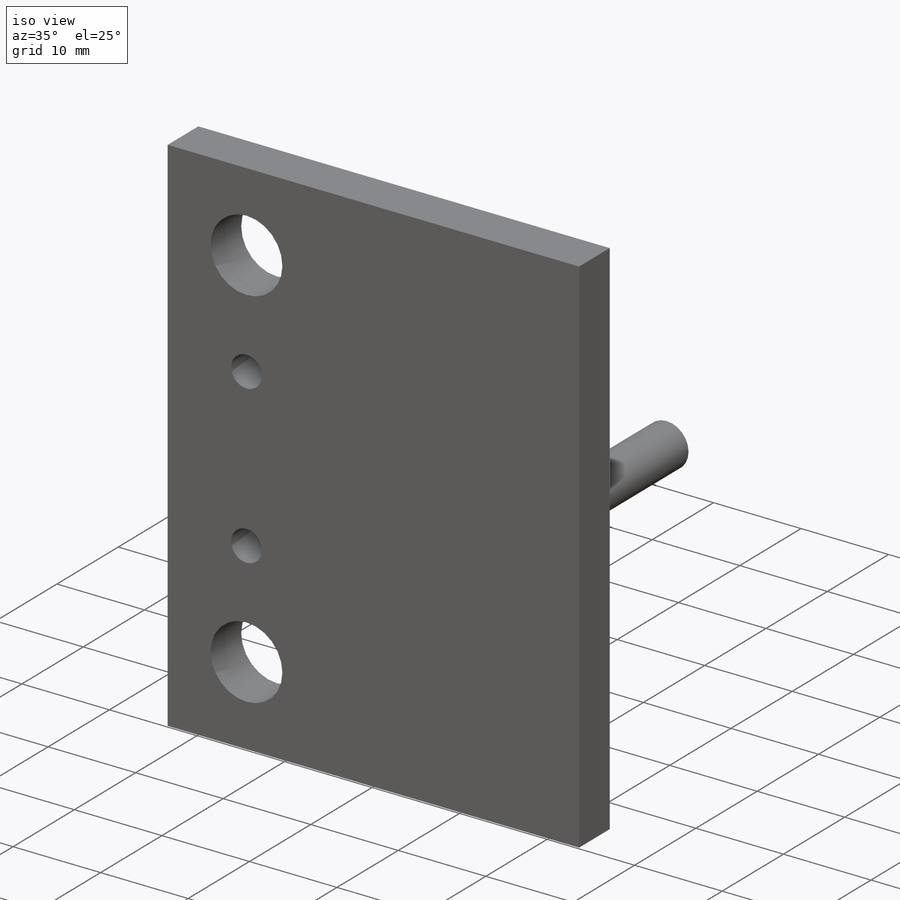
[diagram: iso view]
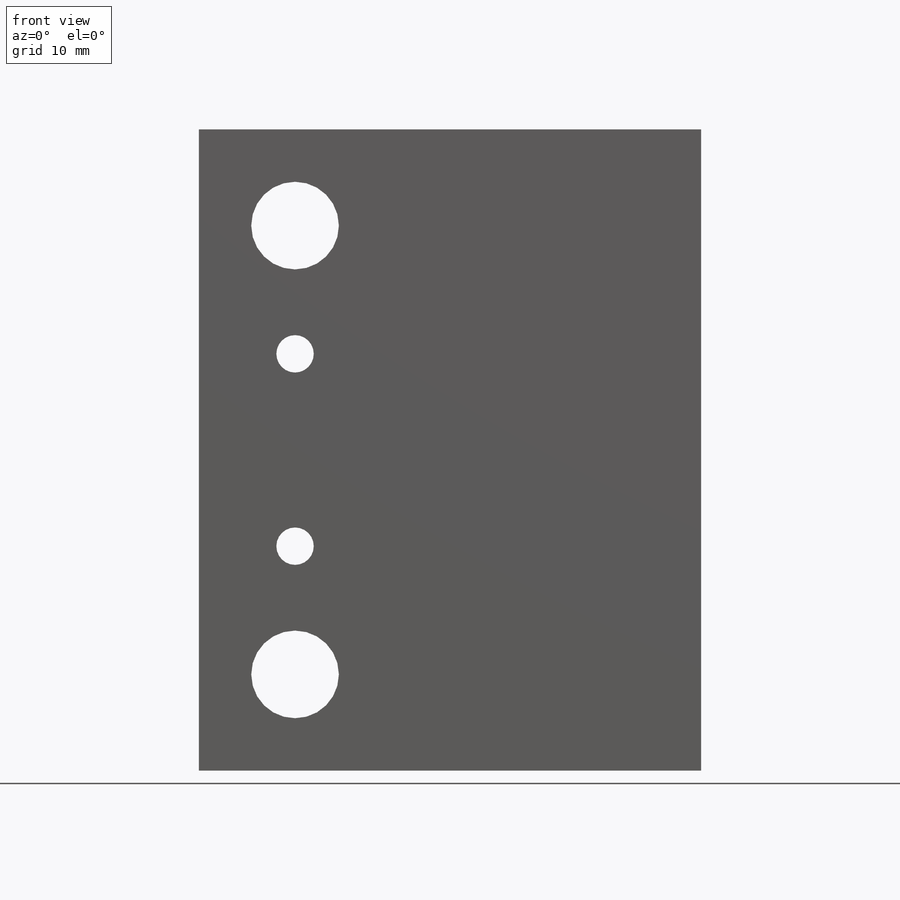
[diagram: front view]
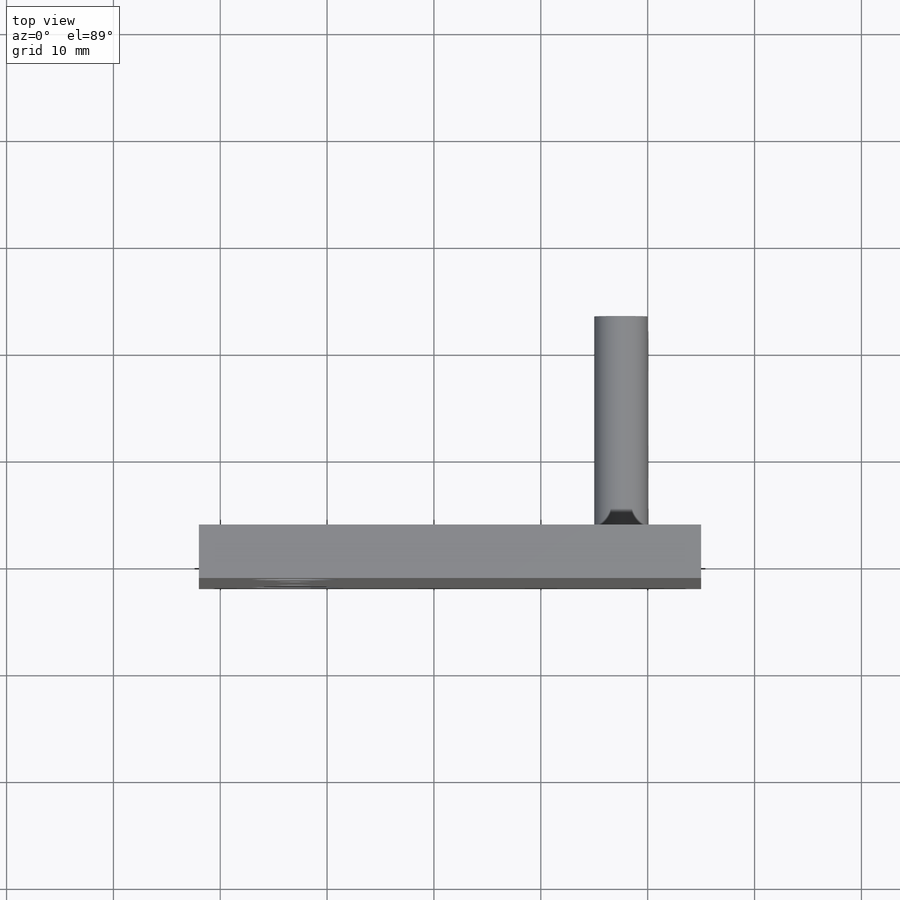
[diagram: top view]
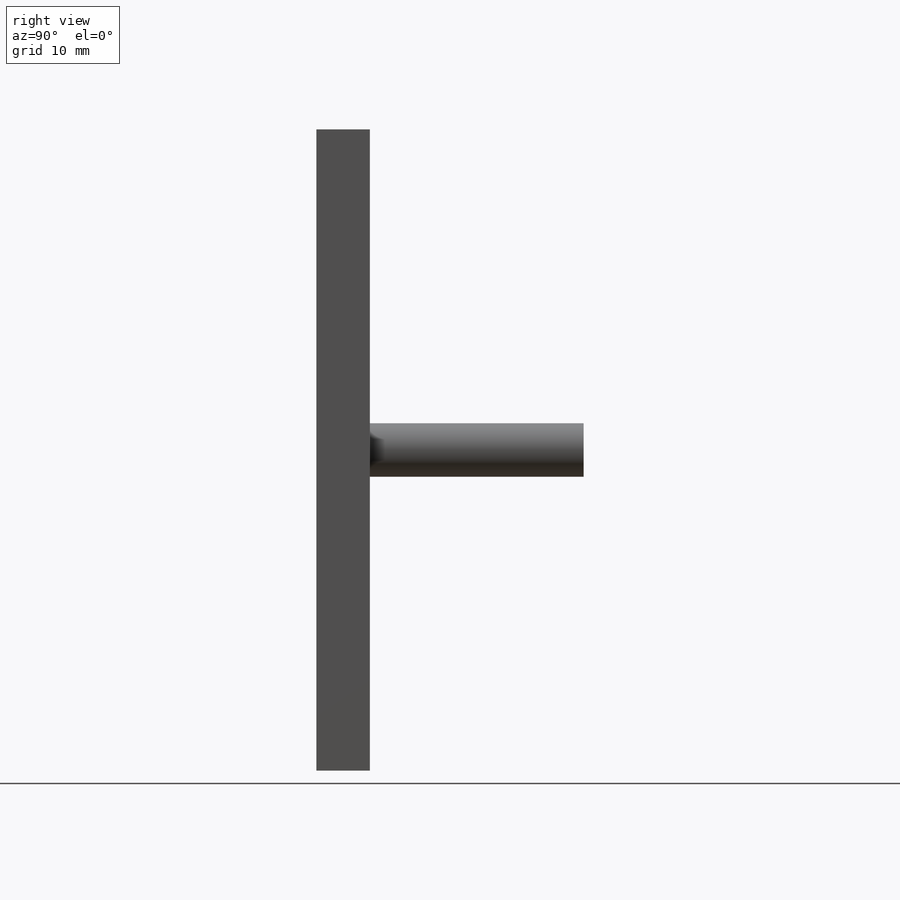
[diagram: right view]
SOLIDWORKS PART (.sldprt)
format: sldprt  version: not decoded by parser v0  size: 218,112 bytes
history: native  units: mm
features: sketch x5, extrude x4, material x1, cut_extrude x1 (+13 scaffold rows collapsed)
feature tree (24):
  scaffold x13  (default folders/planes/origin — collapsed)
  material  "Material <not specified>"
  sketch  "Sketch1"  dims[D1=5.0mm D2=60.0mm]
  extrude  "Boss-Extrude1"  Depth=5mm
  sketch  "Sketch2"  dims[D1=5.0mm]
  extrude  "Boss-Extrude2"  Depth=20mm
  sketch  "Sketch3"  dims[c1.D1=5.0mm c1.D2=5.0mm c1.D3=5.0mm c2.D1=30.0mm c2.D2=7.5mm c2.D3=60.0mm]
  extrude  "Boss-Extrude3"  Depth=20mm
  sketch  "Sketch4"
  extrude  "Boss-Extrude4"  Depth=22mm
  sketch  "Sketch5"  dims[c1.D1=8.4mm c1.D2=8.4mm c1.D3=8.4mm c1.D4=8.4mm c1.D5=6.4mm c1.D6=6.4mm c1.D7=6.4mm c1.D8=2.1mm c2.D1=9.0mm c2.D2=9.0mm c2.D3=9.0mm c2.D4=9.0mm c2.D5=9.0mm c2.D6=21.0mm c2.D7=18.0mm c2.D8=12.0mm]
  cut_extrude  "Cut-Extrude1"  [1 undecoded]
decode coverage: 8 of 10 modeling features carry decoded parameters
note: 1 parameter value undecoded
note: suppression state not decoded; provenance and decode notes live in map.json
